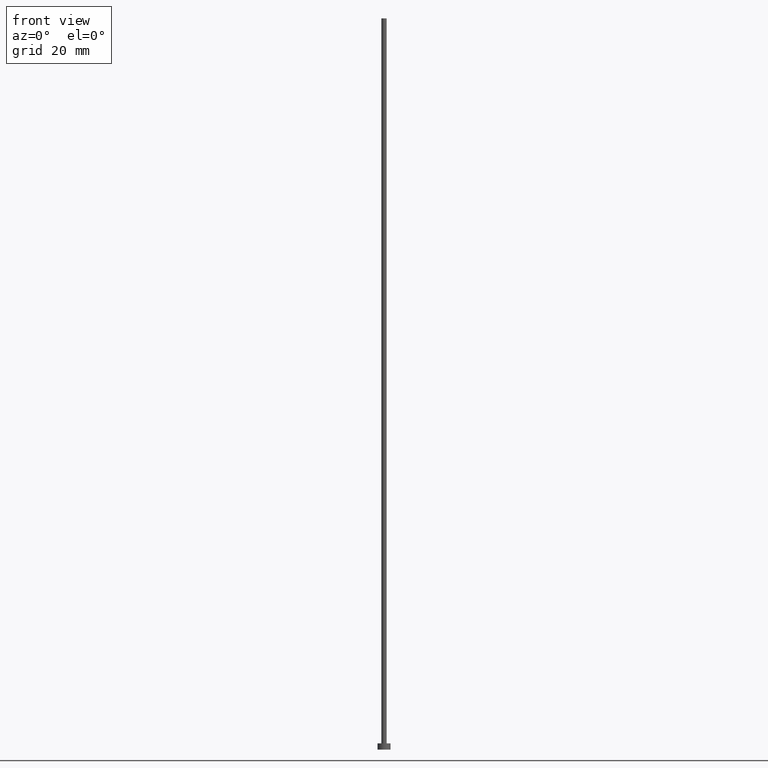
[diagram: clean part render]
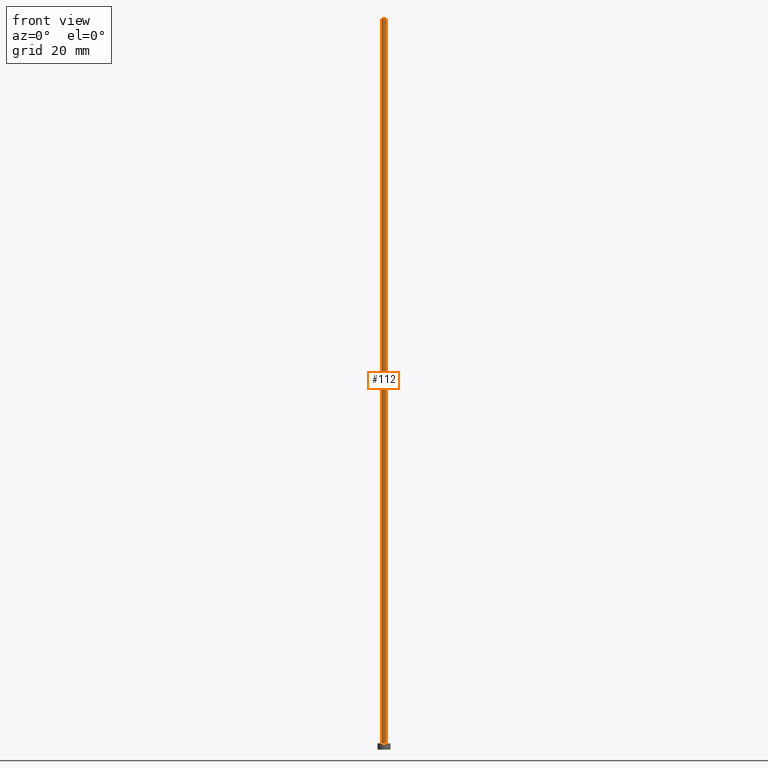
[diagram: same view with one face highlighted and labeled with its STEP entity id]
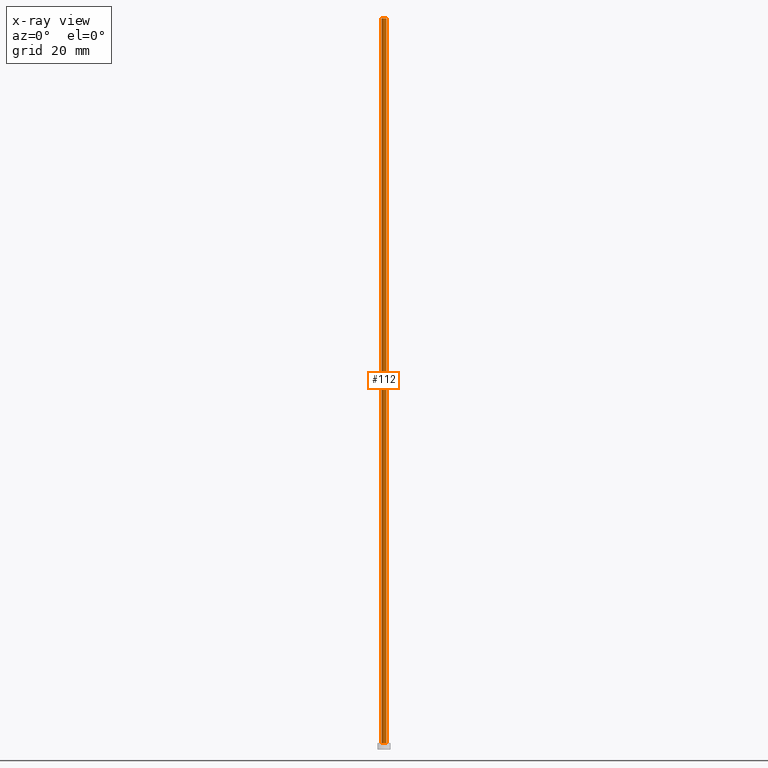
[diagram: x-ray of the same camera — body ghosted, the highlighted face saturated]
A machine part, front view. The second image highlights one B-rep face of the part: STEP entity #112.
The next image is the same camera in x-ray: the body ghosted, the highlighted face saturated — about 0% of this face is hidden behind the body in this view.
In plain terms, the highlighted cylindrical surface (edge-blend (fillet) strip) has radius 0.5 mm, axis along (-0, -0, -1).
Its self-contained STEP definition (entity closure, byte-faithful):
#2 = DIRECTION ( 'NONE',  ( -1.000000000000000000, 0.000000000000000000, 0.000000000000000000 ) ) ;
#3 = VECTOR ( 'NONE', #30, 1000.000000000000000 ) ;
#8 = FACE_OUTER_BOUND ( 'NONE', #252, .T. ) ;
#10 = DIRECTION ( 'NONE',  ( -0.000000000000000000, -0.000000000000000000, -1.000000000000000000 ) ) ;
#16 = DIRECTION ( 'NONE',  ( 0.000000000000000000, 0.000000000000000000, 1.000000000000000000 ) ) ;
#28 = CARTESIAN_POINT ( 'NONE',  ( 0.000000000000000000, 0.000000000000000000, 140.0000000000000000 ) ) ;
#30 = DIRECTION ( 'NONE',  ( -0.000000000000000000, -0.000000000000000000, -1.000000000000000000 ) ) ;
#31 = LINE ( 'NONE', #204, #143 ) ;
#40 = VERTEX_POINT ( 'NONE', #215 ) ;
#48 = CARTESIAN_POINT ( 'NONE',  ( -0.5000000000000000000, 0.000000000000000000, 140.0000000000000000 ) ) ;
#71 = VERTEX_POINT ( 'NONE', #132 ) ;
#76 = EDGE_CURVE ( 'NONE', #40, #187, #253, .T. ) ;
#86 = AXIS2_PLACEMENT_3D ( 'NONE', #28, #237, #156 ) ;
#98 = ORIENTED_EDGE ( 'NONE', *, *, #245, .F. ) ;
#112 = ADVANCED_FACE ( 'NONE', ( #8 ), #174, .T. ) ;
#117 = VERTEX_POINT ( 'NONE', #48 ) ;
#123 = CARTESIAN_POINT ( 'NONE',  ( 0.000000000000000000, 0.000000000000000000, 140.0000000000000000 ) ) ;
#131 = CARTESIAN_POINT ( 'NONE',  ( 0.000000000000000000, 0.000000000000000000, 1.199999999999999956 ) ) ;
#132 = CARTESIAN_POINT ( 'NONE',  ( 0.5000000000000000000, 6.123233995736766036E-17, 140.0000000000000000 ) ) ;
#143 = VECTOR ( 'NONE', #10, 1000.000000000000000 ) ;
#156 = DIRECTION ( 'NONE',  ( 1.000000000000000000, 0.000000000000000000, 0.000000000000000000 ) ) ;
#160 = CARTESIAN_POINT ( 'NONE',  ( 0.5000000000000000000, 6.123233995736766036E-17, 140.0000000000000000 ) ) ;
#163 = EDGE_CURVE ( 'NONE', #117, #71, #234, .T. ) ;
#167 = DIRECTION ( 'NONE',  ( 1.000000000000000000, 0.000000000000000000, 0.000000000000000000 ) ) ;
#168 = AXIS2_PLACEMENT_3D ( 'NONE', #131, #16, #167 ) ;
#174 = CYLINDRICAL_SURFACE ( 'NONE', #182, 0.5000000000000000000 ) ;
#182 = AXIS2_PLACEMENT_3D ( 'NONE', #123, #221, #2 ) ;
#187 = VERTEX_POINT ( 'NONE', #246 ) ;
#190 = ORIENTED_EDGE ( 'NONE', *, *, #254, .T. ) ;
#204 = CARTESIAN_POINT ( 'NONE',  ( -0.5000000000000000000, 0.000000000000000000, 140.0000000000000000 ) ) ;
#206 = LINE ( 'NONE', #160, #3 ) ;
#215 = CARTESIAN_POINT ( 'NONE',  ( -0.5000000000000000000, 0.000000000000000000, 1.199999999999999956 ) ) ;
#221 = DIRECTION ( 'NONE',  ( -0.000000000000000000, -0.000000000000000000, -1.000000000000000000 ) ) ;
#230 = ORIENTED_EDGE ( 'NONE', *, *, #76, .T. ) ;
#234 = CIRCLE ( 'NONE', #86, 0.5000000000000000000 ) ;
#237 = DIRECTION ( 'NONE',  ( 0.000000000000000000, 0.000000000000000000, 1.000000000000000000 ) ) ;
#245 = EDGE_CURVE ( 'NONE', #71, #187, #206, .T. ) ;
#246 = CARTESIAN_POINT ( 'NONE',  ( 0.5000000000000000000, 6.123233995736766036E-17, 1.199999999999999956 ) ) ;
#248 = ORIENTED_EDGE ( 'NONE', *, *, #163, .F. ) ;
#252 = EDGE_LOOP ( 'NONE', ( #98, #248, #190, #230 ) ) ;
#253 = CIRCLE ( 'NONE', #168, 0.5000000000000000000 ) ;
#254 = EDGE_CURVE ( 'NONE', #117, #40, #31, .T. ) ;